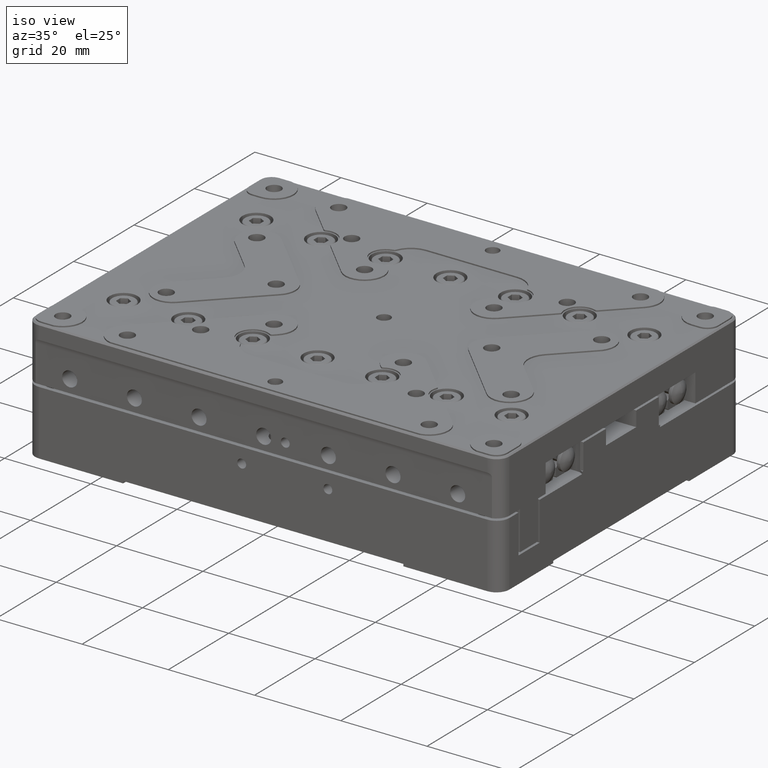
[diagram: clean part render]
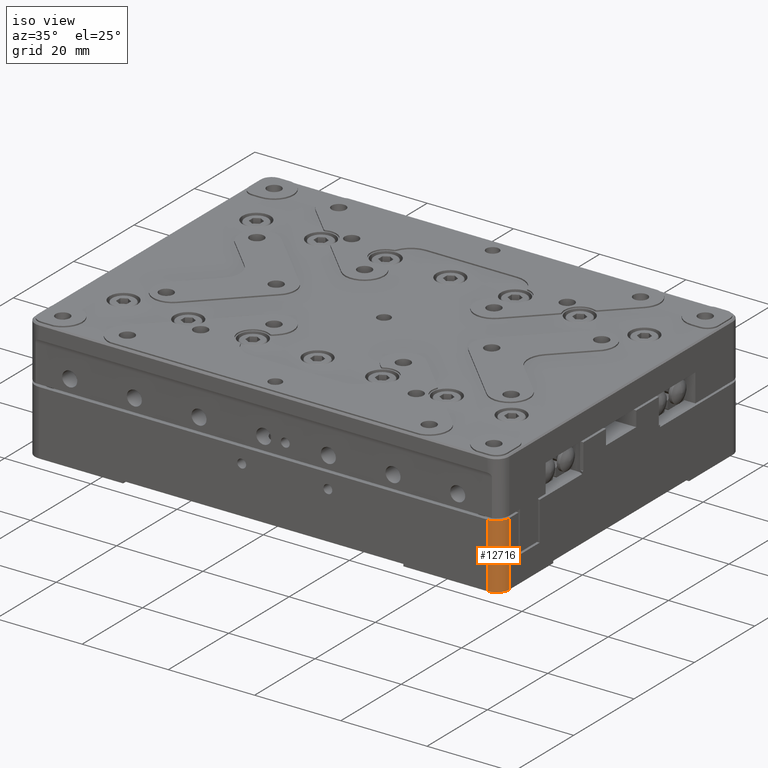
[diagram: same view with one face highlighted and labeled with its STEP entity id]
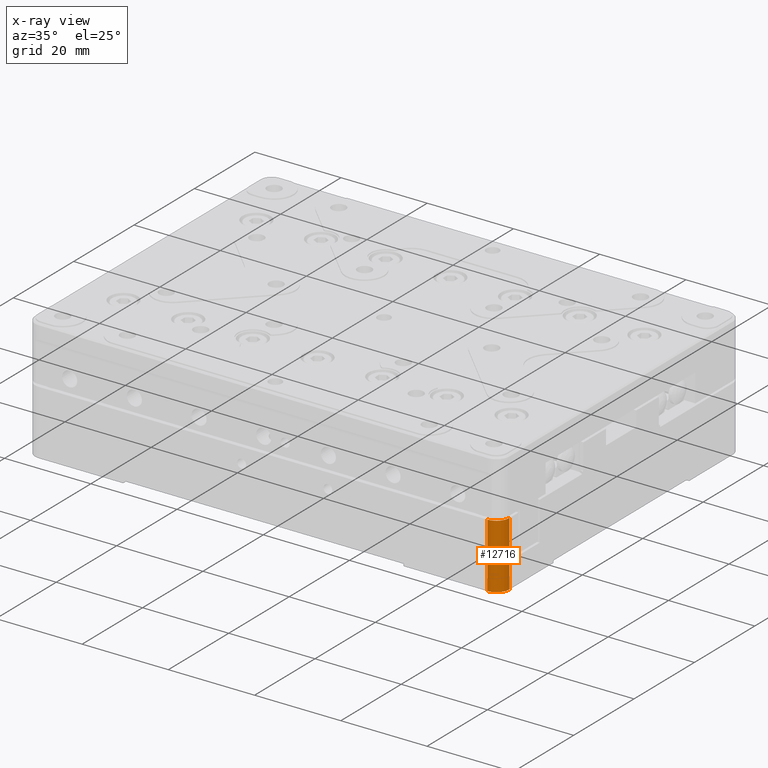
[diagram: x-ray of the same camera — body ghosted, the highlighted face saturated]
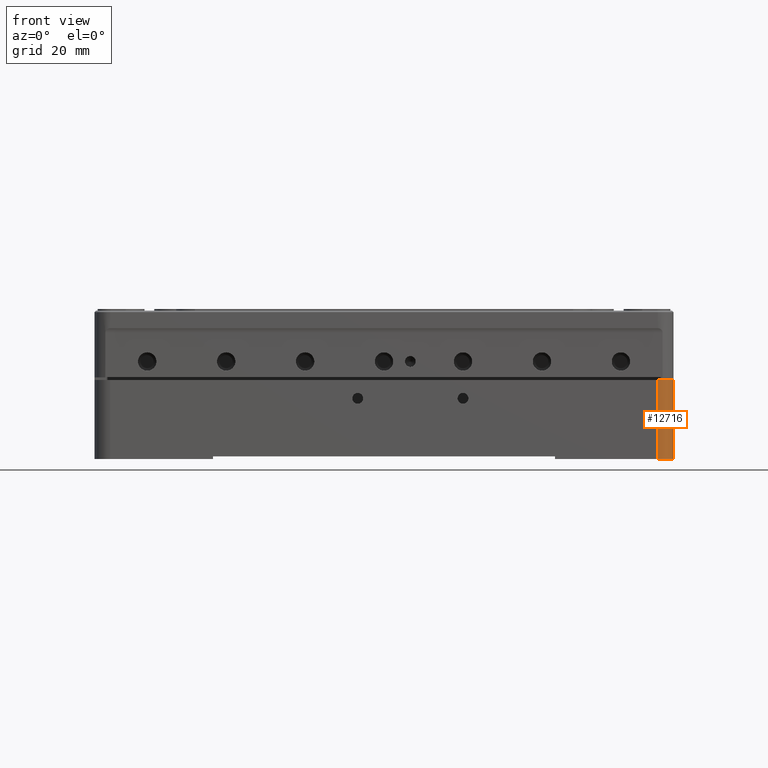
[diagram: same view with one face highlighted and labeled with its STEP entity id]
A machine part, iso view. The second image highlights one B-rep face of the part: STEP entity #12716.
The next image is the same camera in x-ray: the body ghosted, the highlighted face saturated — about 0% of this face is hidden behind the body in this view.
A second angle (front view) of the same face is appended — the face is thin or edge-on in the first view.
In plain terms, the highlighted cylindrical surface (edge-blend (fillet) strip) has radius 3 mm, axis along (0, 0, -1).
Its self-contained STEP definition (entity closure, byte-faithful):
#242 = LINE ( 'NONE', #24777, #13641 ) ;
#1030 = AXIS2_PLACEMENT_3D ( 'NONE', #35318, #29778, #10280 ) ;
#1136 = VERTEX_POINT ( 'NONE', #14648 ) ;
#1202 = CARTESIAN_POINT ( 'NONE',  ( 52.00000000000000000, -37.00000000000000000, -15.00000000000000000 ) ) ;
#1845 = CYLINDRICAL_SURFACE ( 'NONE', #32388, 3.000000000000002665 ) ;
#5939 = VECTOR ( 'NONE', #32385, 1000.000000000000000 ) ;
#6387 = DIRECTION ( 'NONE',  ( -1.000000000000000000, 0.000000000000000000, 0.000000000000000000 ) ) ;
#6489 = EDGE_CURVE ( 'NONE', #33817, #1136, #242, .T. ) ;
#6526 = CIRCLE ( 'NONE', #28831, 3.000000000000002665 ) ;
#10280 = DIRECTION ( 'NONE',  ( -1.000000000000000000, 0.000000000000000000, 0.000000000000000000 ) ) ;
#10601 = DIRECTION ( 'NONE',  ( -1.000000000000000000, 0.000000000000000000, 0.000000000000000000 ) ) ;
#11288 = EDGE_CURVE ( 'NONE', #1136, #12429, #6526, .T. ) ;
#11757 = EDGE_LOOP ( 'NONE', ( #34779, #30954, #24673, #14513 ) ) ;
#12402 = CARTESIAN_POINT ( 'NONE',  ( 52.00000000000000000, -40.00000000000000000, -15.00000000000000000 ) ) ;
#12429 = VERTEX_POINT ( 'NONE', #12402 ) ;
#12716 = ADVANCED_FACE ( 'NONE', ( #26369 ), #1845, .T. ) ;
#13568 = CIRCLE ( 'NONE', #1030, 3.000000000000002665 ) ;
#13641 = VECTOR ( 'NONE', #14206, 1000.000000000000000 ) ;
#14206 = DIRECTION ( 'NONE',  ( 0.000000000000000000, 0.000000000000000000, -1.000000000000000000 ) ) ;
#14513 = ORIENTED_EDGE ( 'NONE', *, *, #16110, .F. ) ;
#14648 = CARTESIAN_POINT ( 'NONE',  ( 55.00000000000000000, -37.00000000000000000, -15.00000000000000000 ) ) ;
#16110 = EDGE_CURVE ( 'NONE', #34700, #33817, #13568, .T. ) ;
#19113 = CARTESIAN_POINT ( 'NONE',  ( 52.00000000000000000, -40.00000000000000000, 34.52740000000000009 ) ) ;
#22696 = DIRECTION ( 'NONE',  ( 0.000000000000000000, 0.000000000000000000, -1.000000000000000000 ) ) ;
#24673 = ORIENTED_EDGE ( 'NONE', *, *, #6489, .F. ) ;
#24777 = CARTESIAN_POINT ( 'NONE',  ( 55.00000000000000000, -37.00000000000000000, 0.000000000000000000 ) ) ;
#26369 = FACE_OUTER_BOUND ( 'NONE', #11757, .T. ) ;
#28831 = AXIS2_PLACEMENT_3D ( 'NONE', #1202, #22696, #6387 ) ;
#29064 = CARTESIAN_POINT ( 'NONE',  ( 55.00000000000000000, -37.00000000000000000, 0.000000000000000000 ) ) ;
#29275 = CARTESIAN_POINT ( 'NONE',  ( 52.00000000000000000, -40.00000000000000000, 0.000000000000000000 ) ) ;
#29778 = DIRECTION ( 'NONE',  ( 0.000000000000000000, 0.000000000000000000, 1.000000000000000000 ) ) ;
#30954 = ORIENTED_EDGE ( 'NONE', *, *, #11288, .F. ) ;
#31940 = DIRECTION ( 'NONE',  ( 0.000000000000000000, 0.000000000000000000, -1.000000000000000000 ) ) ;
#32385 = DIRECTION ( 'NONE',  ( 0.000000000000000000, 0.000000000000000000, -1.000000000000000000 ) ) ;
#32388 = AXIS2_PLACEMENT_3D ( 'NONE', #34605, #31940, #10601 ) ;
#32635 = EDGE_CURVE ( 'NONE', #34700, #12429, #35065, .T. ) ;
#33817 = VERTEX_POINT ( 'NONE', #29064 ) ;
#34605 = CARTESIAN_POINT ( 'NONE',  ( 52.00000000000000000, -37.00000000000000000, 34.52740000000000009 ) ) ;
#34700 = VERTEX_POINT ( 'NONE', #29275 ) ;
#34779 = ORIENTED_EDGE ( 'NONE', *, *, #32635, .T. ) ;
#35065 = LINE ( 'NONE', #19113, #5939 ) ;
#35318 = CARTESIAN_POINT ( 'NONE',  ( 52.00000000000000000, -37.00000000000000000, 0.000000000000000000 ) ) ;